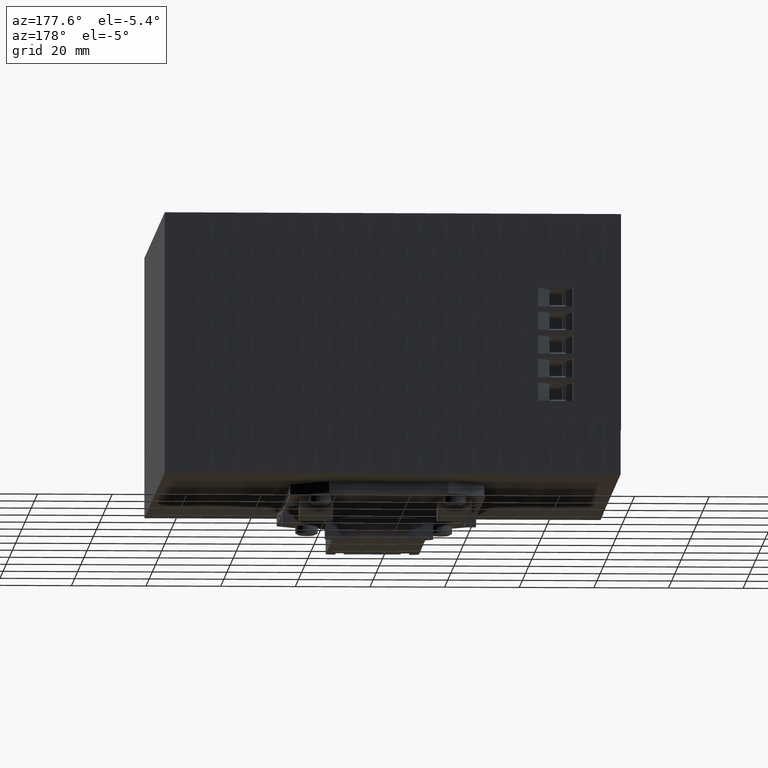
[diagram: clean part render]
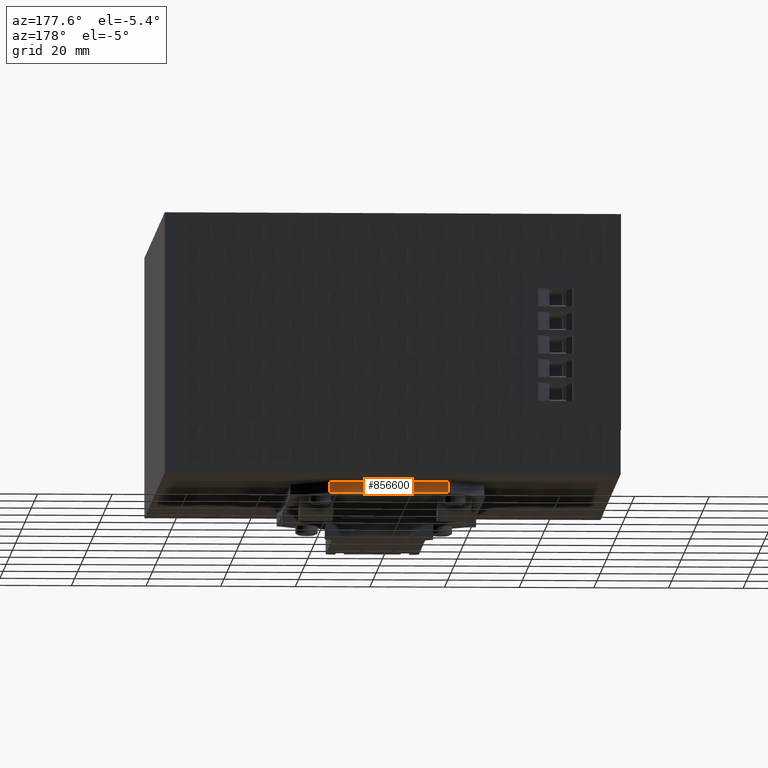
[diagram: same view with one face highlighted and labeled with its STEP entity id]
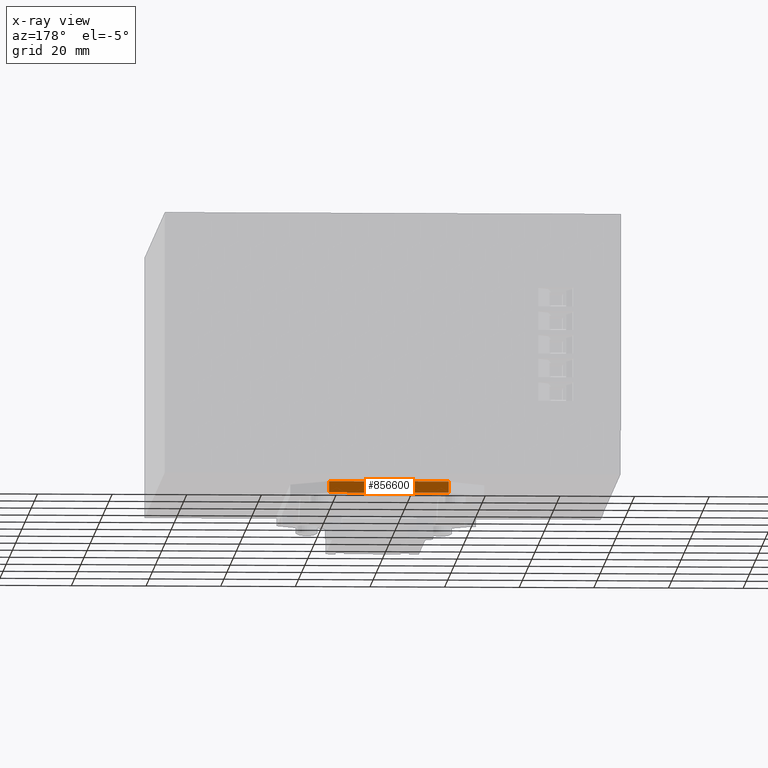
[diagram: x-ray of the same camera — body ghosted, the highlighted face saturated]
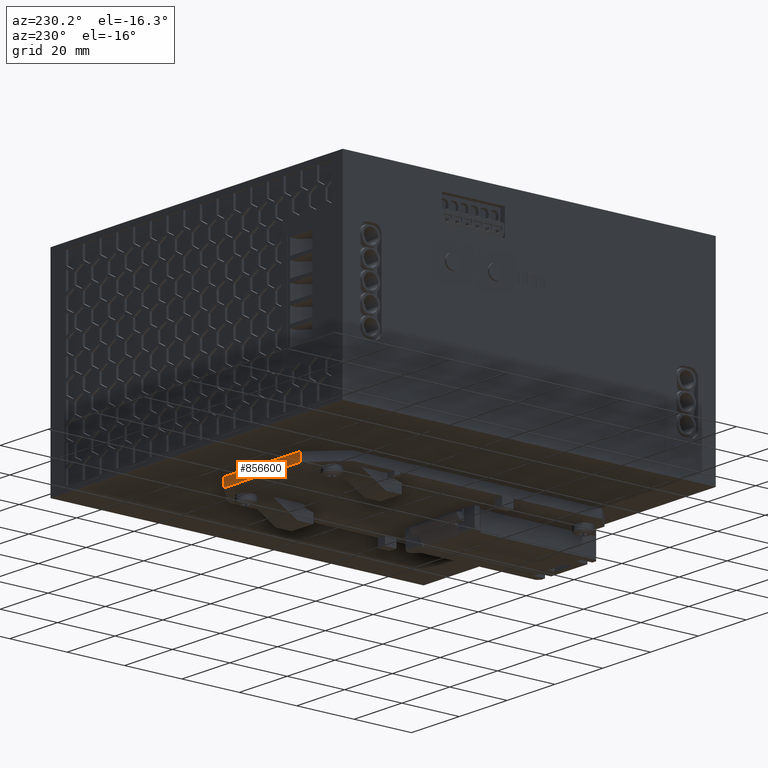
[diagram: same view with one face highlighted and labeled with its STEP entity id]
A machine part, auxiliary view. The second image highlights one B-rep face of the part: STEP entity #856600.
The next image is the same camera in x-ray: the body ghosted, the highlighted face saturated — about 0% of this face is hidden behind the body in this view.
A second angle (auxiliary view) of the same face is appended — the face is thin or edge-on in the first view.
In plain terms, the highlighted planar face has unit normal (0, 1, 0).
Its self-contained STEP definition (entity closure, byte-faithful):
#86010=CARTESIAN_POINT('',(0.,77.0999999999896,21.896849890801));
#86020=VERTEX_POINT('',#86010);
#86050=CARTESIAN_POINT('',(0.,0.,21.896849890801));
#86060=DIRECTION('',(0.,-1.,0.));
#86070=VECTOR('',#86060,1.);
#86080=LINE('',#86050,#86070);
#86090=CARTESIAN_POINT('',(0.,45.0999999999897,21.896849890801));
#86100=VERTEX_POINT('',#86090);
#86110=EDGE_CURVE('',#86020,#86100,#86080,.T.);
#856150=CARTESIAN_POINT('',(-2.99999999999994,77.0999999999897,
21.896849890801));
#856160=VERTEX_POINT('',#856150);
#856190=CARTESIAN_POINT('',(-289.0627120448,77.0999999999897,
21.896849890801));
#856200=DIRECTION('',(-1.,0.,0.));
#856210=VECTOR('',#856200,1.);
#856220=LINE('',#856190,#856210);
#856230=EDGE_CURVE('',#86020,#856160,#856220,.T.);
#856370=CARTESIAN_POINT('',(-3.11279999999994,44.2621999999897,
21.896849890801));
#856380=DIRECTION('',(0.,0.,-1.));
#856390=DIRECTION('',(1.,0.,0.));
#856400=AXIS2_PLACEMENT_3D('',#856370,#856380,#856390);
#856410=PLANE('',#856400);
#856420=CARTESIAN_POINT('',(-289.0627120448,45.0999999999896,
21.896849890801));
#856430=DIRECTION('',(-1.,0.,0.));
#856440=VECTOR('',#856430,1.);
#856450=LINE('',#856420,#856440);
#856460=CARTESIAN_POINT('',(-2.99999999999994,45.0999999999897,
21.896849890801));
#856470=VERTEX_POINT('',#856460);
#856480=EDGE_CURVE('',#86100,#856470,#856450,.T.);
#856490=ORIENTED_EDGE('',*,*,#856480,.T.);
#856500=ORIENTED_EDGE('',*,*,#86110,.T.);
#856510=ORIENTED_EDGE('',*,*,#856230,.F.);
#856520=CARTESIAN_POINT('',(-2.99999999999994,52.2499999999897,
21.896849890801));
#856530=DIRECTION('',(0.,1.,0.));
#856540=VECTOR('',#856530,1.);
#856550=LINE('',#856520,#856540);
#856560=EDGE_CURVE('',#856470,#856160,#856550,.T.);
#856570=ORIENTED_EDGE('',*,*,#856560,.T.);
#856580=EDGE_LOOP('',(#856570,#856510,#856500,#856490));
#856590=FACE_OUTER_BOUND('',#856580,.T.);
#856600=ADVANCED_FACE('',(#856590),#856410,.T.);